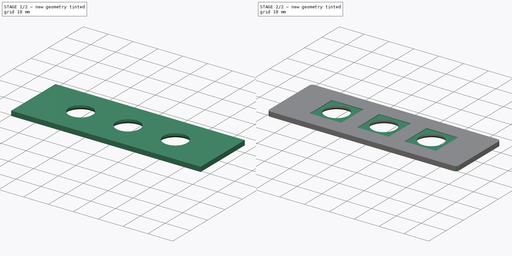
[diagram: build sequence overview — one tinted view per stage of 2, left to right]
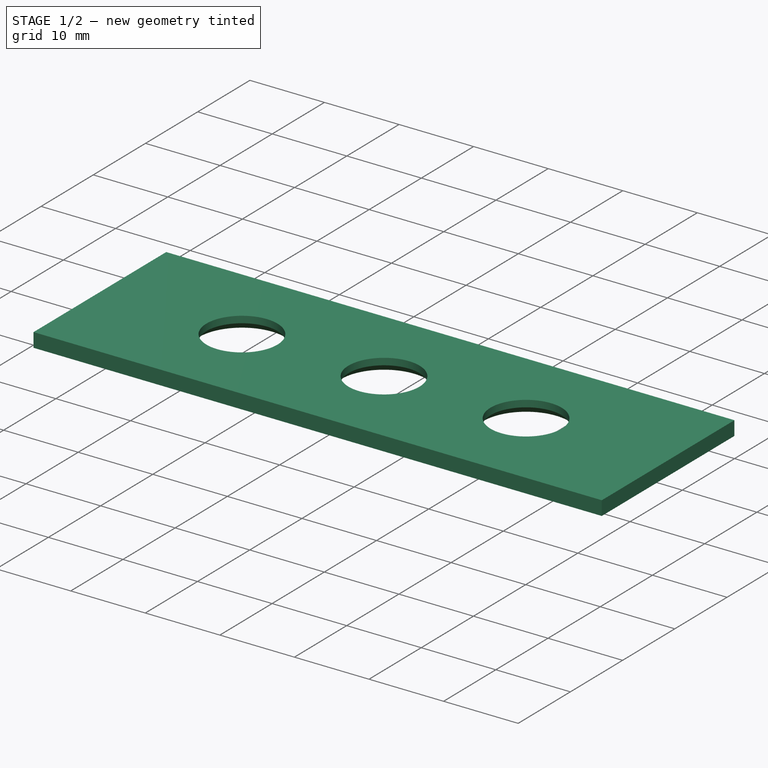
[diagram: stage 1 of 2 — iso view after this stage's code; geometry added in this stage tinted green]
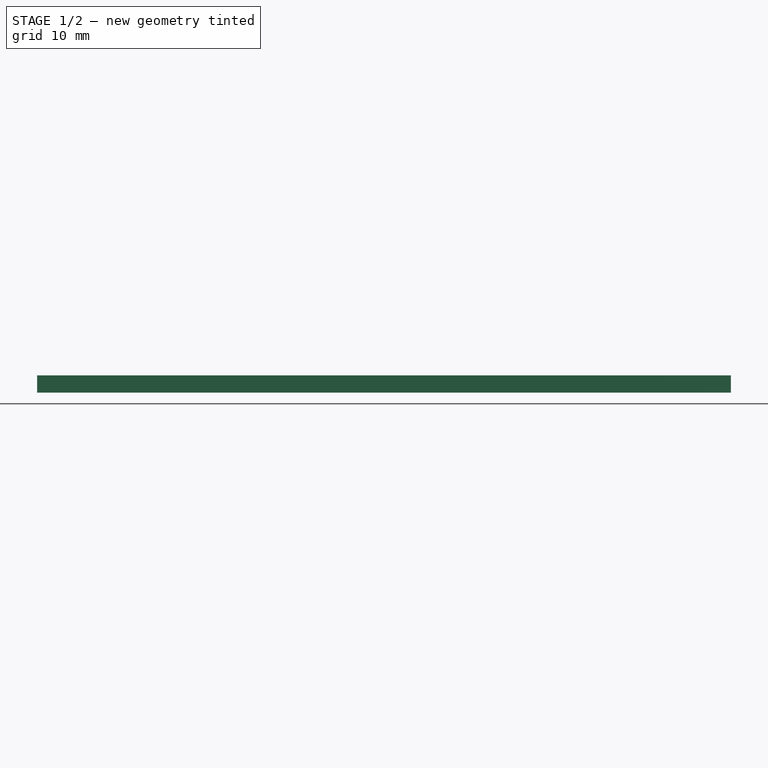
[diagram: stage 1 of 2 — front view after this stage's code; geometry added in this stage tinted green]
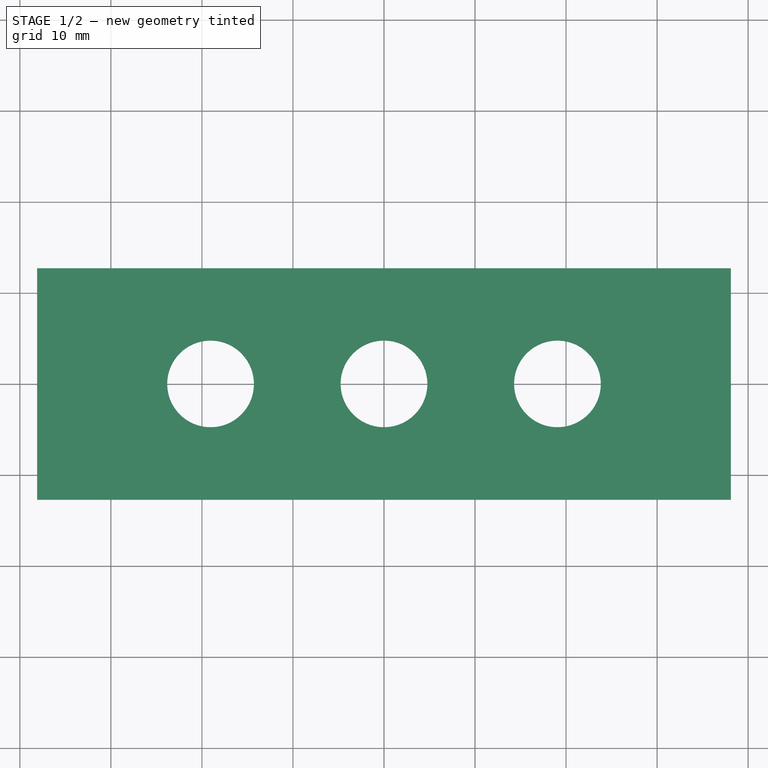
[diagram: stage 1 of 2 — top view after this stage's code; geometry added in this stage tinted green]
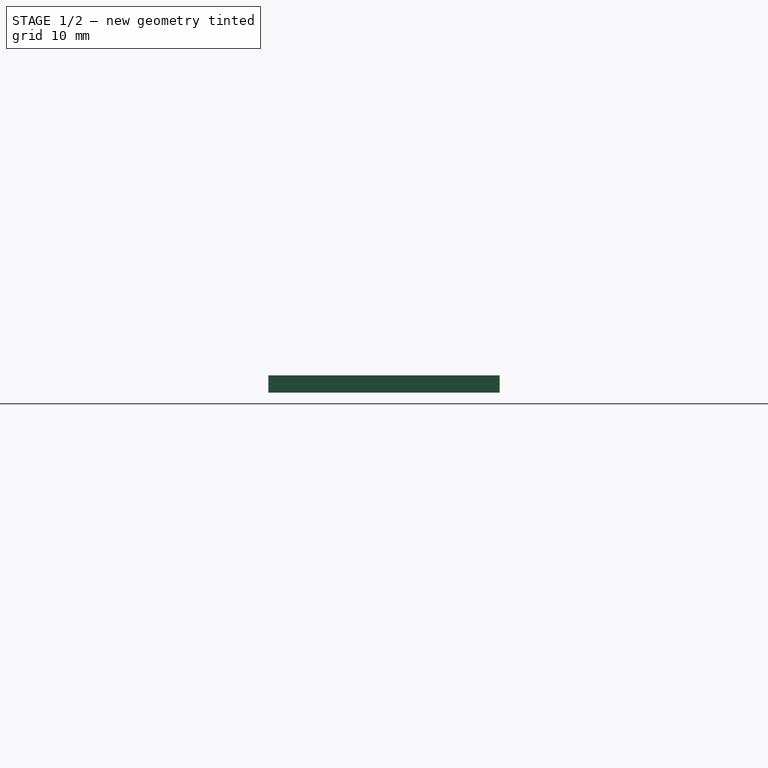
[diagram: stage 1 of 2 — right view after this stage's code; geometry added in this stage tinted green]
FCSTD DOCUMENT  (FreeCAD 0.18R16146 (Git))
Label: Sample Holder Slide
License: All rights reserved
LicenseURL: http://en.wikipedia.org/wiki/All_rights_reserved
objects: Sketcher::SketchObject×2, PartDesign::Pad×1, PartDesign::Chamfer×1, PartDesign::Pocket×1, PartDesign::Fillet×1, PartDesign::Body×1
note: 9 computed .brp shape members not serialized (recipe doc carries the construction recipe); baked Part::Feature solids carry a one-line shape summary decoded from their .brp

FEATURE [Sketcher::SketchObject] Sketch
  MapMode = 5
  Support = -> [XY_Plane]
  sketch-geometry (9):
    g0: LineSegment StartX=-38.1 StartY=12.7 StartZ=0 EndX=38.1 EndY=12.7 EndZ=0
    g1: LineSegment StartX=38.1 StartY=12.7 StartZ=0 EndX=38.1 EndY=-12.7 EndZ=0
    g2: LineSegment StartX=38.1 StartY=-12.7 StartZ=0 EndX=-38.1 EndY=-12.7 EndZ=0
    g3: LineSegment StartX=-38.1 StartY=-12.7 StartZ=0 EndX=-38.1 EndY=12.7 EndZ=0
    g4: Circle CenterX=0 CenterY=0 CenterZ=0 NormalX=0 NormalY=0 NormalZ=1 AngleXU=0 Radius=4.7625
    g5: LineSegment [constr] StartX=0 StartY=0 StartZ=0 EndX=19.05 EndY=0 EndZ=0
    g6: LineSegment [constr] StartX=0 StartY=0 StartZ=0 EndX=-19.05 EndY=0 EndZ=0
    g7: Circle CenterX=-19.05 CenterY=0 CenterZ=0 NormalX=0 NormalY=0 NormalZ=1 AngleXU=0 Radius=4.7625
    g8: Circle CenterX=19.05 CenterY=0 CenterZ=0 NormalX=0 NormalY=0 NormalZ=1 AngleXU=0 Radius=4.7625
  constraints (22):
    c: Coincident(g0,g1)
    c: Coincident(g1,g2)
    c: Coincident(g2,g3)
    c: Coincident(g3,g0)
    c: Horizontal(g0)
    c: Vertical(g1)
    c: DistanceX(g0,g0) = 76.2
    c: DistanceY(g3,g3) = 25.4
    c: Symmetric(g2,g1,g-2)
    c: Symmetric(g0,g2,g-1)
    c: Coincident(g-1,g4)
    c: Diameter(g4) = 9.525
    c: Horizontal(g6)
    c: Horizontal(g5)
    c: DistanceX(g6,g6) = 19.05
    c: Equal(g6,g5)
    c: Equal(g4,g7)
    c: Equal(g4,g8)
    c: Coincident(g7,g6)
    c: Coincident(g6,g4)
    c: Coincident(g5,g4)
    c: Coincident(g8,g5)
FEATURE [PartDesign::Pad] Pad
  Length = 1.905
  Length2 = 99.9998
  Profile = -> Sketch
  Type = 0
FEATURE [PartDesign::Chamfer] Chamfer
  Base = -> Pad [Edge17,Edge14,Edge20]
  BaseFeature = -> Pad
  Size = 1
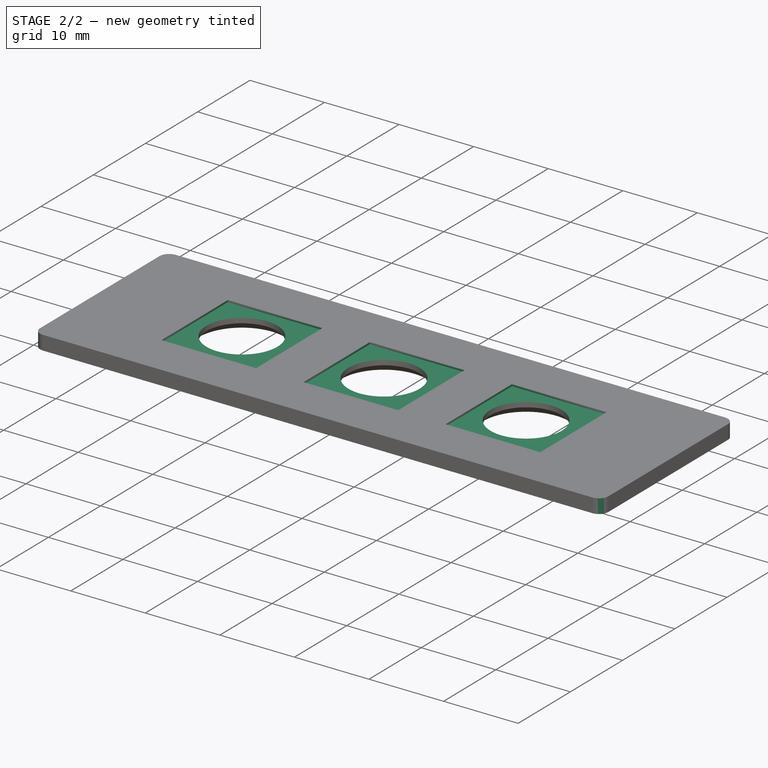
[diagram: stage 2 of 2 — iso view after this stage's code; geometry added in this stage tinted green]
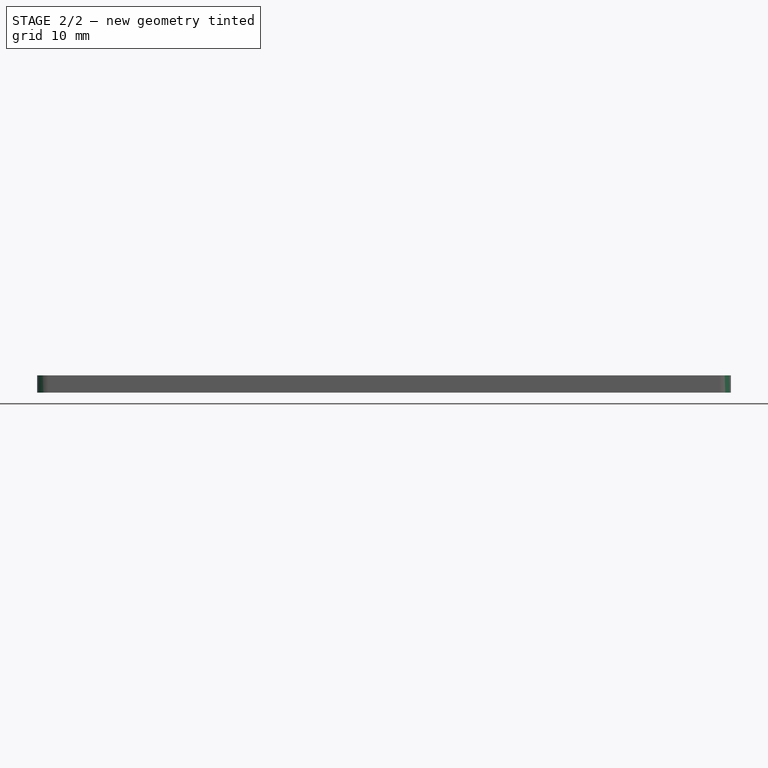
[diagram: stage 2 of 2 — front view after this stage's code; geometry added in this stage tinted green]
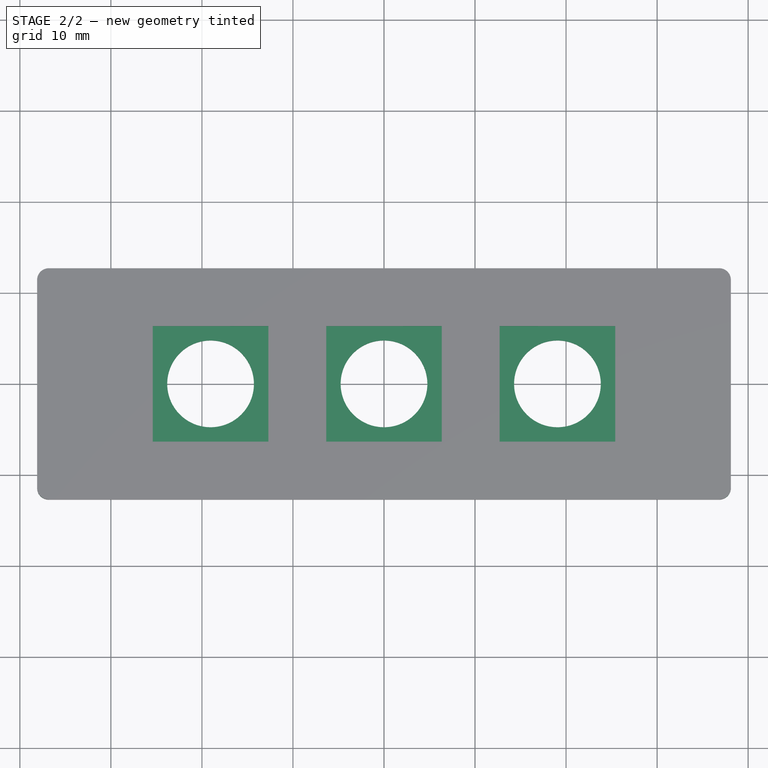
[diagram: stage 2 of 2 — top view after this stage's code; geometry added in this stage tinted green]
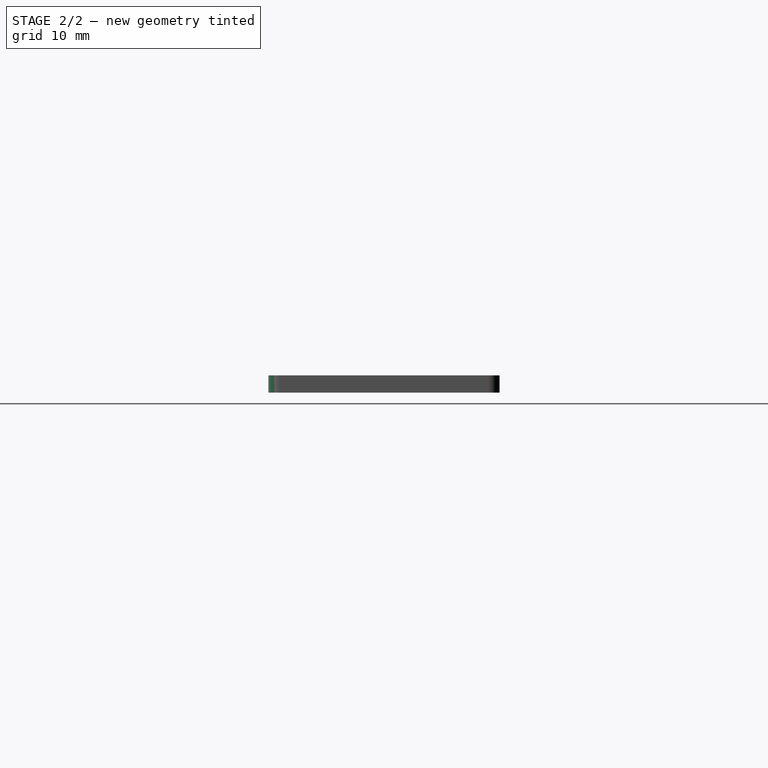
[diagram: stage 2 of 2 — right view after this stage's code; geometry added in this stage tinted green]
FEATURE [Sketcher::SketchObject] Sketch001
  MapMode = 5
  Placement = pos=(0,0,1.905) rot=(0,0,1;0rad)
  Support = -> [Chamfer]
  sketch-geometry (16):
    g0: LineSegment StartX=-6.35 StartY=6.35 StartZ=0 EndX=6.35 EndY=6.35 EndZ=0
    g1: LineSegment StartX=6.35 StartY=6.35 StartZ=0 EndX=6.35 EndY=-6.35 EndZ=0
    g2: LineSegment StartX=6.35 StartY=-6.35 StartZ=0 EndX=-6.35 EndY=-6.35 EndZ=0
    g3: LineSegment StartX=-6.35 StartY=-6.35 StartZ=0 EndX=-6.35 EndY=6.35 EndZ=0
    g4: LineSegment StartX=-25.4 StartY=6.35 StartZ=0 EndX=-12.7 EndY=6.35 EndZ=0
    g5: LineSegment StartX=-12.7 StartY=6.35 StartZ=0 EndX=-12.7 EndY=-6.35 EndZ=0
    g6: LineSegment StartX=-12.7 StartY=-6.35 StartZ=0 EndX=-25.4 EndY=-6.35 EndZ=0
    g7: LineSegment StartX=-25.4 StartY=-6.35 StartZ=0 EndX=-25.4 EndY=6.35 EndZ=0
    g8: LineSegment StartX=12.7 StartY=6.35 StartZ=0 EndX=25.4 EndY=6.35 EndZ=0
    g9: LineSegment StartX=25.4 StartY=6.35 StartZ=0 EndX=25.4 EndY=-6.35 EndZ=0
    g10: LineSegment StartX=25.4 StartY=-6.35 StartZ=0 EndX=12.7 EndY=-6.35 EndZ=0
    g11: LineSegment StartX=12.7 StartY=-6.35 StartZ=0 EndX=12.7 EndY=6.35 EndZ=0
    g12: LineSegment [constr] StartX=0 StartY=0 StartZ=0 EndX=-19.05 EndY=0 EndZ=0
    g13: LineSegment [constr] StartX=0 StartY=0 StartZ=0 EndX=19.05 EndY=0 EndZ=0
    g14: LineSegment [constr] StartX=-19.05 StartY=-19.05 StartZ=0 EndX=-19.05 EndY=0 EndZ=0
    g15: LineSegment [constr] StartX=19.05 StartY=-19.05 StartZ=0 EndX=19.05 EndY=0 EndZ=0
  constraints (42):
    c: Coincident(g0,g1)
    c: Coincident(g1,g2)
    c: Coincident(g2,g3)
    c: Coincident(g3,g0)
    c: Horizontal(g2)
    c: Vertical(g1)
    c: Coincident(g4,g5)
    c: Coincident(g5,g6)
    c: Coincident(g6,g7)
    c: Coincident(g7,g4)
    c: Horizontal(g4)
    c: Horizontal(g6)
    c: Vertical(g5)
    c: Vertical(g7)
    c: Coincident(g8,g9)
    c: Coincident(g9,g10)
    c: Coincident(g10,g11)
    c: Coincident(g11,g8)
    c: Horizontal(g8)
    c: Horizontal(g10)
    c: Vertical(g9)
    c: Vertical(g11)
    c: Symmetric(g0,g0,g-2)
    c: Symmetric(g2,g0,g-1)
    c: Equal(g2,g1)
    c: DistanceX(g0,g0) = 12.7
    c: Coincident(g13,g-1)
    c: Coincident(g12,g-1)
    c: DistanceX(g12,g12) = 19.05
    c: Equal(g12,g13)
    c: Symmetric(g4,g5,g12)
    c: Symmetric(g8,g10,g13)
    c: Coincident(g13,g15)
    c: Coincident(g12,g14)
    c: DistanceY(g14,g14) = 19.05
    c: Equal(g14,g15)
    c: Symmetric(g6,g5,g14)
    c: Symmetric(g10,g9,g15)
    c: Equal(g4,g0)
    c: Equal(g0,g8)
    c: Equal(g8,g9)
    c: Equal(g7,g6)
FEATURE [PartDesign::Pocket] Pocket
  BaseFeature = -> Chamfer
  Length = 0.254
  Length2 = 99.9998
  Profile = -> Sketch001
  Type = 0
FEATURE [PartDesign::Fillet] Fillet
  Base = -> Pocket [Edge27,Edge29,Edge26,Edge31]
  BaseFeature = -> Pocket
  Radius = 1.27
FEATURE [PartDesign::Body] Body
  Group = -> [Sketch,Pad,Chamfer,Sketch001,Pocket,Fillet]
  Origin = -> Origin
  Tip = -> Fillet
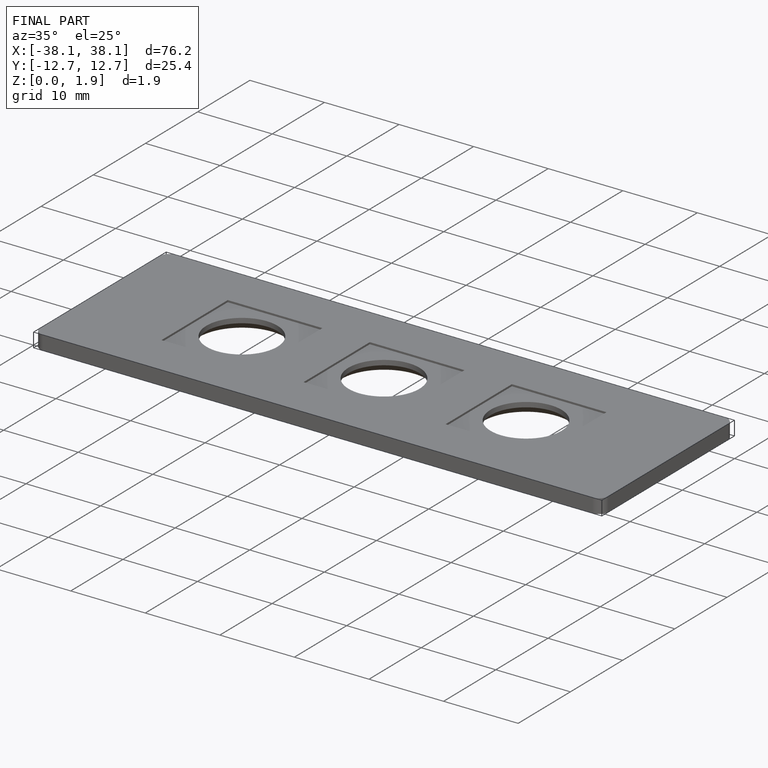
[diagram: finished part — iso view with bounding-box wireframe]
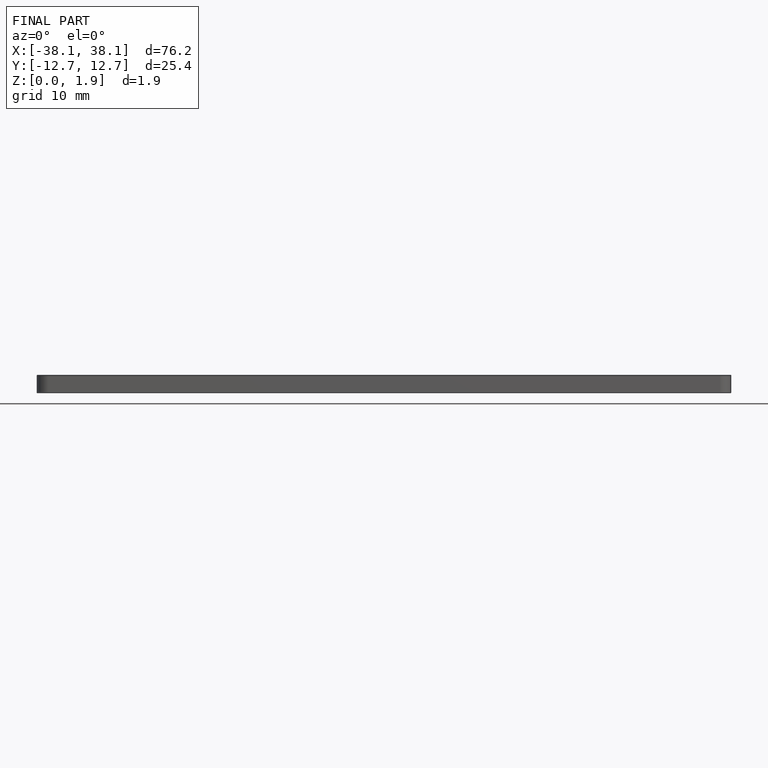
[diagram: finished part — front view with bounding-box wireframe]
